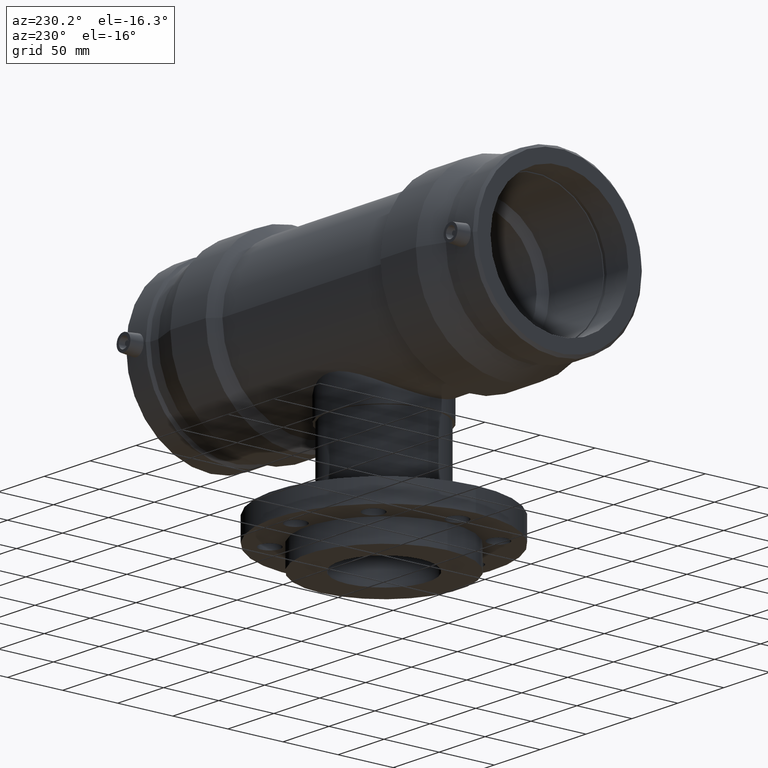
[diagram: clean part render]
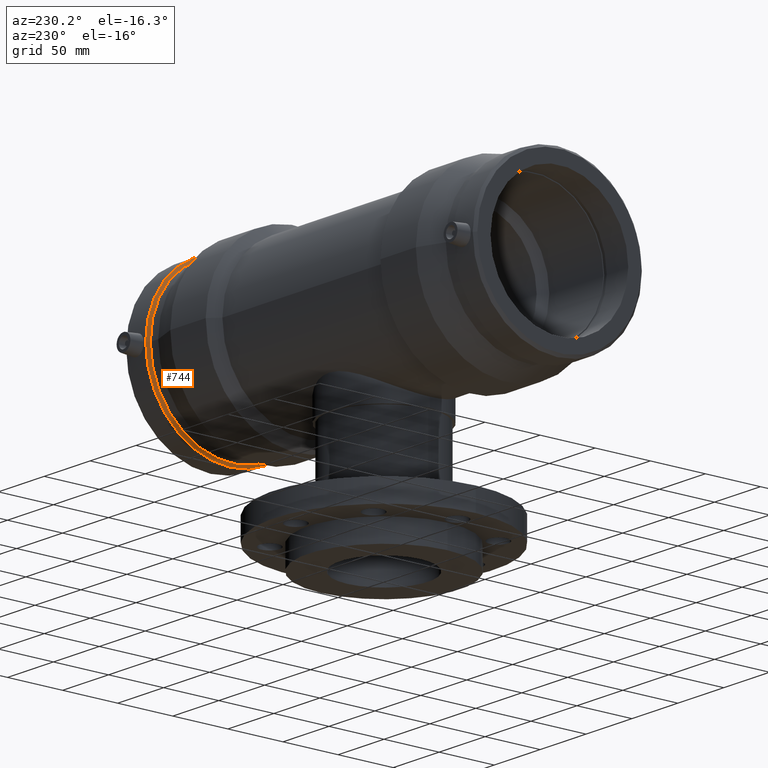
[diagram: same view with one face highlighted and labeled with its STEP entity id]
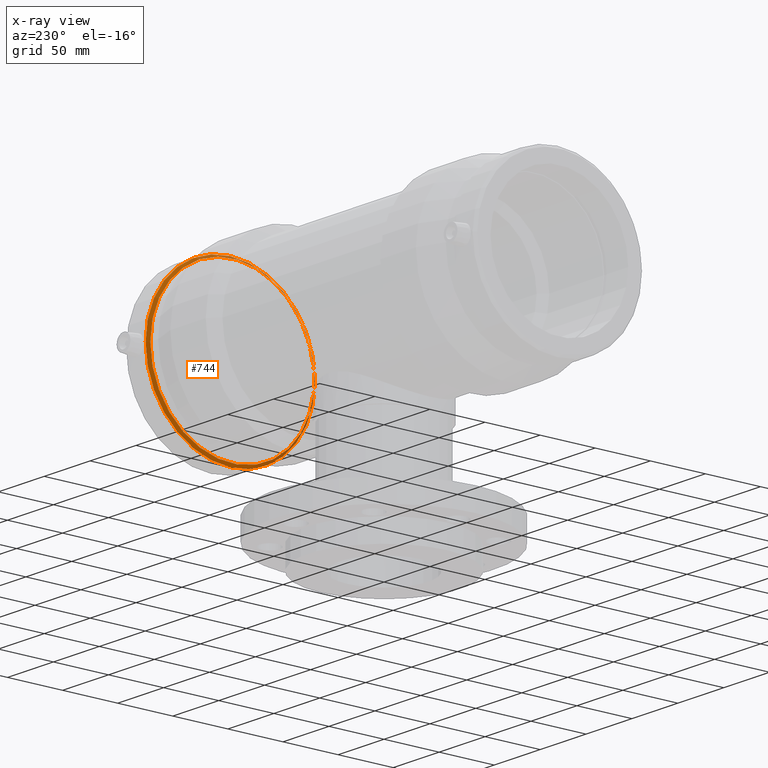
[diagram: x-ray of the same camera — body ghosted, the highlighted face saturated]
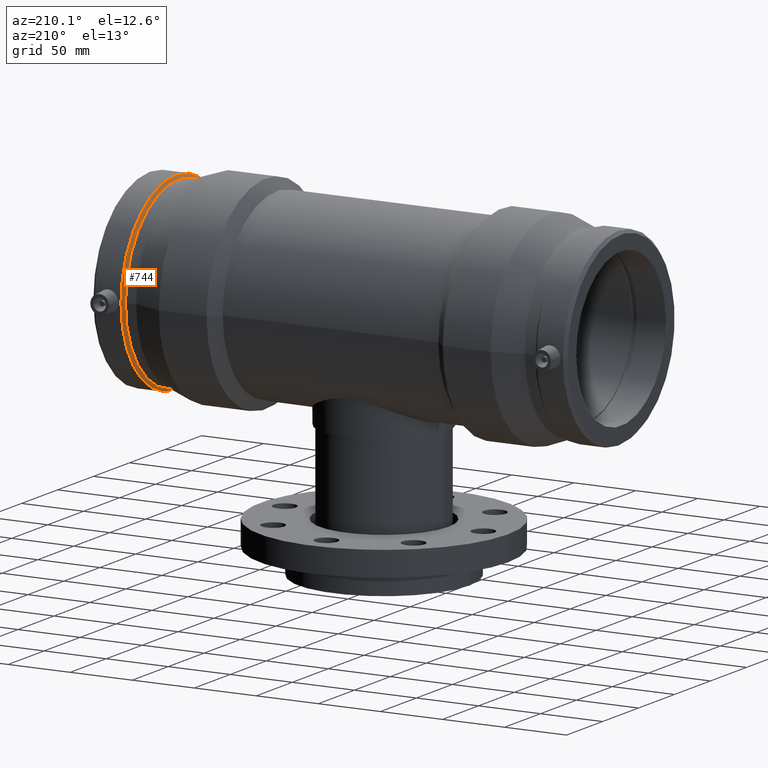
[diagram: same view with one face highlighted and labeled with its STEP entity id]
A machine part, auxiliary view. The second image highlights one B-rep face of the part: STEP entity #744.
The next image is the same camera in x-ray: the body ghosted, the highlighted face saturated — about 21% of this face is hidden behind the body in this view.
A second angle (auxiliary view) of the same face is appended — the face is thin or edge-on in the first view.
In plain terms, the highlighted conical surface has half-angle 45 deg.
Its self-contained STEP definition (entity closure, byte-faithful):
#24=CONICAL_SURFACE('',#855,75.574125,44.9999999999997);
#104=FACE_BOUND('',#381,.T.);
#170=CIRCLE('',#854,74.42325);
#171=CIRCLE('',#856,76.725);
#260=FACE_OUTER_BOUND('',#380,.T.);
#380=EDGE_LOOP('',(#666));
#381=EDGE_LOOP('',(#667));
#473=VERTEX_POINT('',#1689);
#474=VERTEX_POINT('',#1692);
#543=EDGE_CURVE('',#473,#473,#170,.T.);
#544=EDGE_CURVE('',#474,#474,#171,.T.);
#666=ORIENTED_EDGE('',*,*,#543,.T.);
#667=ORIENTED_EDGE('',*,*,#544,.F.);
#744=ADVANCED_FACE('',(#260,#104),#24,.T.);
#854=AXIS2_PLACEMENT_3D('',#1690,#1073,#1074);
#855=AXIS2_PLACEMENT_3D('',#1691,#1075,#1076);
#856=AXIS2_PLACEMENT_3D('',#1693,#1077,#1078);
#1073=DIRECTION('center_axis',(1.,0.,0.));
#1074=DIRECTION('ref_axis',(0.,0.,-1.));
#1075=DIRECTION('center_axis',(1.,0.,0.));
#1076=DIRECTION('ref_axis',(0.,1.,0.));
#1077=DIRECTION('center_axis',(1.,0.,0.));
#1078=DIRECTION('ref_axis',(0.,0.,-1.));
#1689=CARTESIAN_POINT('',(165.2,74.42325,0.));
#1690=CARTESIAN_POINT('Origin',(165.2,0.,0.));
#1691=CARTESIAN_POINT('Origin',(166.350875,0.,0.));
#1692=CARTESIAN_POINT('',(167.50175,76.725,0.));
#1693=CARTESIAN_POINT('Origin',(167.50175,0.,0.));